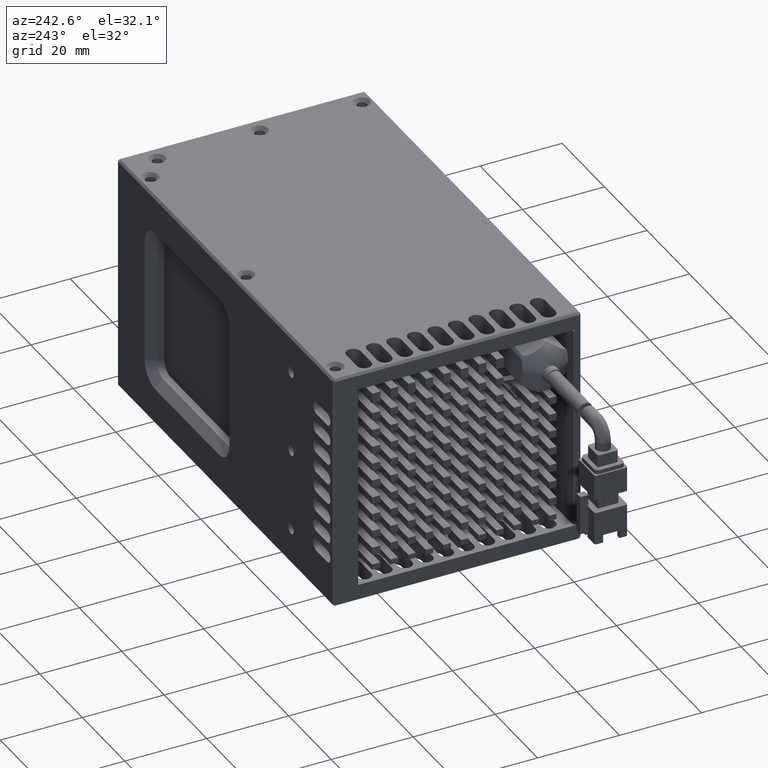
[diagram: clean part render]
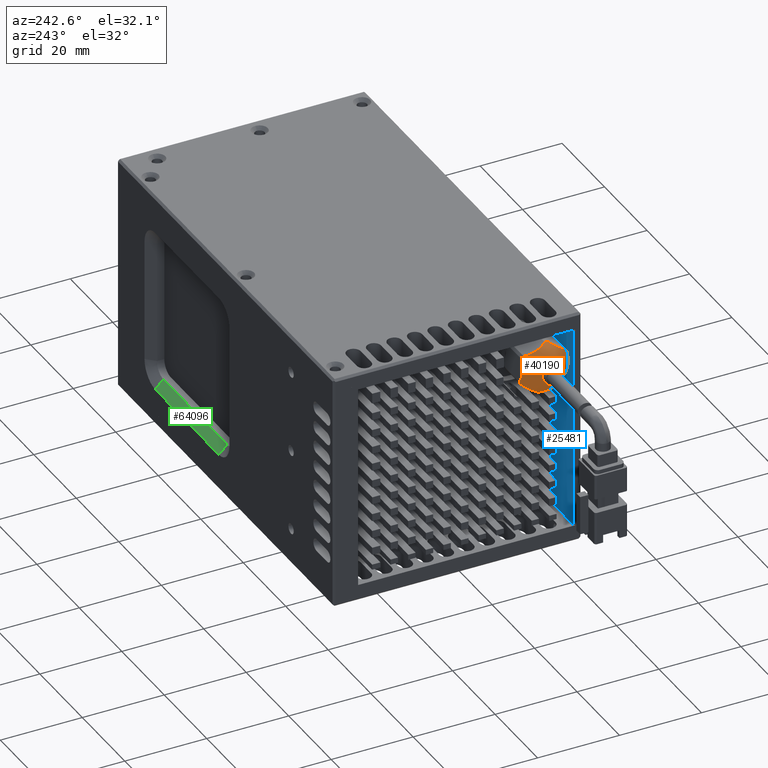
[diagram: same view with three faces highlighted in distinct colors, each labeled with its STEP entity id]
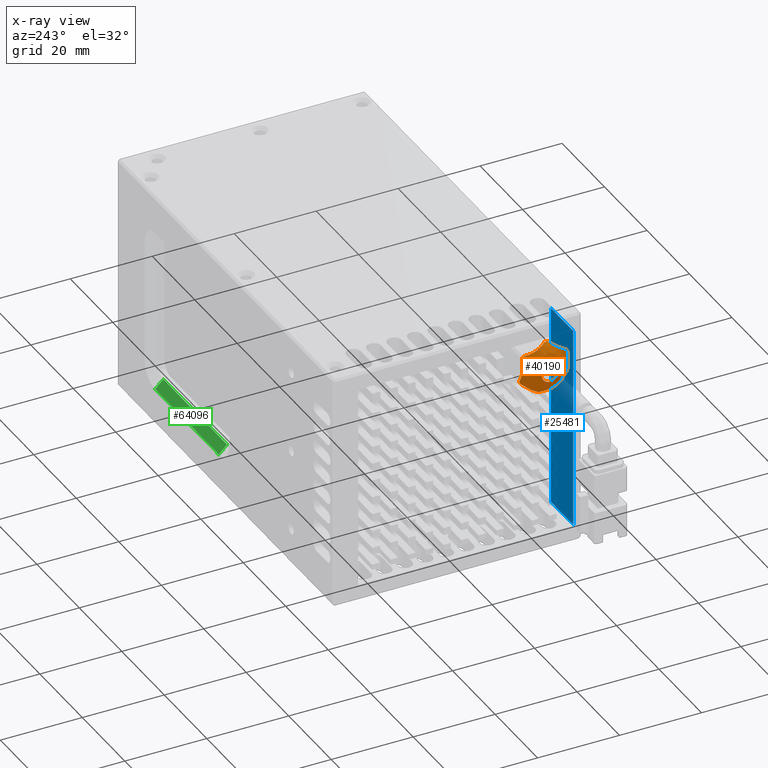
[diagram: x-ray of the same camera — body ghosted, the three highlighted faces saturated]
A machine part, auxiliary view with three faces highlighted in distinct colors.
The next image is the same camera in x-ray (body ghosted, the three faces saturated) — at least one of them is partly hidden behind the body in this view.
Their STEP definitions:

[orange] entity #40190 — the highlighted face is a freeform B-spline surface patch.
#63 = DIRECTION ( 'NONE',  ( -1.000000000000000000, -3.435095995686201000E-016, 5.943609381515295800E-025 ) ) ;
#664 = CARTESIAN_POINT ( 'NONE',  ( -69.76751117526072200, -3.757429982836344900, 46.10302907912925000 ) ) ;
#1146 = CARTESIAN_POINT ( 'NONE',  ( -67.11748828113964300, -2.040397117867909200, 52.89484992564335600 ) ) ;
#1305 = CARTESIAN_POINT ( 'NONE',  ( -69.01067074972824900, 6.359593161516713200, 51.12003725472583000 ) ) ;
#1408 = CIRCLE ( 'NONE', #64068, 6.249999999999519500 ) ;
#1698 = VERTEX_POINT ( 'NONE', #57127 ) ;
#1701 = CARTESIAN_POINT ( 'NONE',  ( -69.74788720313205200, 5.516405416110333500, 42.80281597644518900 ) ) ;
#1880 = CARTESIAN_POINT ( 'NONE',  ( -68.86375292816285300, 1.775993330902647400, 47.00000000000953500 ) ) ;
#2270 = EDGE_CURVE ( 'NONE', #15719, #27277, #1408, .T. ) ;
#2798 = EDGE_CURVE ( 'NONE', #32900, #52061, #59809, .T. ) ;
#2986 = DIRECTION ( 'NONE',  ( 0.0000000000000000000, 0.1155358669953259300, -0.9933033088828600000 ) ) ;
#3318 = CARTESIAN_POINT ( 'NONE',  ( -69.76791800731977800, -0.6688521879133749700, 41.95597120429006600 ) ) ;
#3627 = CARTESIAN_POINT ( 'NONE',  ( -69.14023917023460800, 7.611446565604945000, 45.30031130620378800 ) ) ;
#3949 = AXIS2_PLACEMENT_3D ( 'NONE', #66506, #34768, #2986 ) ;
#4153 = CARTESIAN_POINT ( 'NONE',  ( -69.61245713189387600, -2.548694199875747300, 50.76271614182066800 ) ) ;
#4412 = ORIENTED_EDGE ( 'NONE', *, *, #2270, .F. ) ;
#4491 = ORIENTED_EDGE ( 'NONE', *, *, #57229, .T. ) ;
#5080 = VERTEX_POINT ( 'NONE', #54070 ) ;
#5784 = CARTESIAN_POINT ( 'NONE',  ( -68.86375292816285300, -3.465854137917597600, 43.59624690766882100 ) ) ;
#5791 = ORIENTED_EDGE ( 'NONE', *, *, #49527, .T. ) ;
#5854 = VERTEX_POINT ( 'NONE', #20504 ) ;
#5887 = VERTEX_POINT ( 'NONE', #26339 ) ;
#6001 = CARTESIAN_POINT ( 'NONE',  ( -69.74827311948432400, -3.843521769959718600, 46.84319106727402700 ) ) ;
#6398 = CARTESIAN_POINT ( 'NONE',  ( -69.61245713189376300, 2.872257331551832500, 52.62664733599891800 ) ) ;
#6463 = CARTESIAN_POINT ( 'NONE',  ( -76.08316824912783700, 4.992152780540819500, 50.51262484915948600 ) ) ;
#7003 = CARTESIAN_POINT ( 'NONE',  ( -69.76791800731975000, 4.921827646007848500, 42.36068727452639800 ) ) ;
#7170 = DIRECTION ( 'NONE',  ( 0.0000000000000000000, 0.1155358669953259300, -0.9933033088828600000 ) ) ;
#7668 = CARTESIAN_POINT ( 'NONE',  ( -68.86375292816285300, 1.775993330902647400, 47.00000000000953500 ) ) ;
#8628 = CARTESIAN_POINT ( 'NONE',  ( -69.67125075074393700, -1.344631551777275300, 42.24792358626742600 ) ) ;
#8690 = CARTESIAN_POINT ( 'NONE',  ( -68.86375292816285300, 1.775993330902647400, 47.00000000000953500 ) ) ;
#8709 = CARTESIAN_POINT ( 'NONE',  ( -69.38120834824201200, 7.115041898616981400, 49.56808036430897600 ) ) ;
#8941 = CARTESIAN_POINT ( 'NONE',  ( -68.86375292816285300, 7.659142921570422800, 44.89024861801639300 ) ) ;
#9017 = VERTEX_POINT ( 'NONE', #29128 ) ;
#9438 = CARTESIAN_POINT ( 'NONE',  ( -69.74788720313225100, -1.964418754304794800, 51.19718402357275300 ) ) ;
#9504 = AXIS2_PLACEMENT_3D ( 'NONE', #43173, #11329, #48454 ) ;
#9777 = VERTEX_POINT ( 'NONE', #62614 ) ;
#10053 = EDGE_LOOP ( 'NONE', ( #38919, #22726 ) ) ;
#10082 = CIRCLE ( 'NONE', #3949, 6.249999999999519500 ) ;
#10329 = CARTESIAN_POINT ( 'NONE',  ( -68.86375292816285300, 1.775993330902647400, 47.00000000000953500 ) ) ;
#11097 = CARTESIAN_POINT ( 'NONE',  ( -69.15758857129377200, -3.512439634392970200, 43.99675913818516200 ) ) ;
#11317 = CARTESIAN_POINT ( 'NONE',  ( -69.61395248318233100, -3.927375146640508200, 47.56410863758488000 ) ) ;
#11329 = DIRECTION ( 'NONE',  ( 1.000000000000000000, 3.435095995686201000E-016, -5.943609381515295800E-025 ) ) ;
#11726 = CARTESIAN_POINT ( 'NONE',  ( -69.74788720313222300, 3.540655277063015300, 52.33788389820305300 ) ) ;
#11783 = CARTESIAN_POINT ( 'NONE',  ( -70.08185129819501900, -6.113500693981673200, 49.22087308385862800 ) ) ;
#11957 = EDGE_CURVE ( 'NONE', #52061, #5854, #56575, .T. ) ;
#12330 = CARTESIAN_POINT ( 'NONE',  ( -69.67125075074403600, 4.331099784588070100, 41.92142136905575700 ) ) ;
#12988 = DIRECTION ( 'NONE',  ( 0.0000000000000000000, 0.1155358669953666000, -0.9933033088828552300 ) ) ;
#13355 = CARTESIAN_POINT ( 'NONE',  ( -68.86375292816285300, -3.465854137917597600, 43.59624690766882100 ) ) ;
#13935 = CARTESIAN_POINT ( 'NONE',  ( -69.46139549951442400, -1.995845591150274600, 42.52926317746930400 ) ) ;
#14012 = DIRECTION ( 'NONE',  ( 0.0000000000000000000, 0.1155358669952932900, -0.9933033088828637800 ) ) ;
#14034 = CARTESIAN_POINT ( 'NONE',  ( -69.67060427605062500, 7.224915172861658500, 48.62346039733898100 ) ) ;
#14450 = EDGE_CURVE ( 'NONE', #32900, #9777, #15000, .T. ) ;
#14742 = CARTESIAN_POINT ( 'NONE',  ( -69.76791800731994900, -1.369840984201970800, 51.63931272549179100 ) ) ;
#15000 = CIRCLE ( 'NONE', #25393, 6.249999999999519500 ) ;
#15165 = VERTEX_POINT ( 'NONE', #60319 ) ;
#15646 = DIRECTION ( 'NONE',  ( 0.0000000000000000000, 0.1155358669953259300, -0.9933033088828600000 ) ) ;
#15719 = VERTEX_POINT ( 'NONE', #28702 ) ;
#16632 = CARTESIAN_POINT ( 'NONE',  ( -69.36540694991344900, -4.008477693713319700, 48.26137633861409200 ) ) ;
#17015 = CARTESIAN_POINT ( 'NONE',  ( -69.76791800732003400, 4.220838849718489000, 52.04402879572795400 ) ) ;
#17077 = CARTESIAN_POINT ( 'NONE',  ( -76.08316824912810700, 5.712523559291454100, 44.31933875745265500 ) ) ;
#17631 = CARTESIAN_POINT ( 'NONE',  ( -69.46139549951458000, 3.761845531830432200, 41.49812326325859900 ) ) ;
#18785 = EDGE_CURVE ( 'NONE', #5887, #9017, #21053, .T. ) ;
#19121 = EDGE_CURVE ( 'NONE', #38785, #9017, #32506, .T. ) ;
#19262 = CARTESIAN_POINT ( 'NONE',  ( -69.14023917023453700, -2.613706873808888000, 42.79619360306332300 ) ) ;
#19345 = CARTESIAN_POINT ( 'NONE',  ( -69.76751117526068000, 7.309416644641678400, 47.89697092088950100 ) ) ;
#20076 = CARTESIAN_POINT ( 'NONE',  ( -69.67125075074409300, -0.7791131227819094700, 52.07857863096266000 ) ) ;
#20504 = CARTESIAN_POINT ( 'NONE',  ( -68.86375292816285300, 1.449180419135050600, 53.24144961694118200 ) ) ;
#20510 = ORIENTED_EDGE ( 'NONE', *, *, #34015, .F. ) ;
#21053 = B_SPLINE_CURVE_WITH_KNOTS ( 'NONE', 3,
 ( #50811, #56142, #24352, #61498, #29742, #66810, #35113, #3318, #40447, #8628, #45775, #13935, #51043, #19262, #56378, #24583 ),
 .UNSPECIFIED., .F., .F.,
 ( 4, 2, 2, 2, 2, 2, 2, 4 ),
 ( 4.690887623826672200E-016, 0.001475511169496401600, 0.002213266754244368100, 0.002951022338992334400, 0.003688777923740300700, 0.004426533508488267000, 0.005164289093236232800, 0.005902044677984199600 ),
 .UNSPECIFIED. ) ;
#21319 = ORIENTED_EDGE ( 'NONE', *, *, #65054, .T. ) ;
#21327 = CARTESIAN_POINT ( 'NONE',  ( -68.86375292816285300, 1.775993330902647400, 47.00000000000953500 ) ) ;
#21922 = CARTESIAN_POINT ( 'NONE',  ( -69.01067074972826300, -4.083863511527429300, 48.90949526674420900 ) ) ;
#22333 = CARTESIAN_POINT ( 'NONE',  ( -69.67125075074416400, 4.896618213582739200, 51.75207641375039500 ) ) ;
#22389 = CARTESIAN_POINT ( 'NONE',  ( -70.08185129819513300, -5.393129915231303300, 43.02758699215177500 ) ) ;
#22716 = CARTESIAN_POINT ( 'NONE',  ( -69.15758857129368700, 7.021092693573398200, 43.92170313676363900 ) ) ;
#22726 = ORIENTED_EDGE ( 'NONE', *, *, #46179, .T. ) ;
#22949 = CARTESIAN_POINT ( 'NONE',  ( -69.14023917023473600, 3.221746360893675800, 41.09650490925837100 ) ) ;
#24259 = CARTESIAN_POINT ( 'NONE',  ( -72.09568362246530200, 1.775993330902716700, 47.00000000000893200 ) ) ;
#24352 = CARTESIAN_POINT ( 'NONE',  ( -69.38120834824229600, 1.330491881488283800, 41.09220812617983400 ) ) ;
#24583 = CARTESIAN_POINT ( 'NONE',  ( -68.86375292816285300, -2.992679756905907600, 42.95991869122291700 ) ) ;
#24687 = CARTESIAN_POINT ( 'NONE',  ( -69.74827311948443800, 7.395508431765049900, 47.15680893274469600 ) ) ;
#25371 = FACE_BOUND ( 'NONE', #10053, .T. ) ;
#25393 = AXIS2_PLACEMENT_3D ( 'NONE', #10329, #47476, #15646 ) ;
#25422 = CARTESIAN_POINT ( 'NONE',  ( -69.46139549951436700, -0.2098588700239784100, 52.50187673676001800 ) ) ;
#25993 = ORIENTED_EDGE ( 'NONE', *, *, #68757, .F. ) ;
#26288 = ORIENTED_EDGE ( 'NONE', *, *, #11957, .T. ) ;
#26339 = CARTESIAN_POINT ( 'NONE',  ( -68.86375292816285300, 2.102806242668322900, 40.75855038307755500 ) ) ;
#26708 = DIRECTION ( 'NONE',  ( 0.0000000000000000000, 0.1155358669953259300, -0.9933033088828600000 ) ) ;
#27094 = CARTESIAN_POINT ( 'NONE',  ( -69.61245713189386200, -3.644958200525246100, 45.13606880583137800 ) ) ;
#27277 = VERTEX_POINT ( 'NONE', #33885 ) ;
#27501 = CARTESIAN_POINT ( 'NONE',  ( -69.15758857129343100, 1.819326933526871400, 53.08153772507832700 ) ) ;
#27726 = CARTESIAN_POINT ( 'NONE',  ( -69.46139549951450900, 5.547832252956119700, 51.47073682254839600 ) ) ;
#27736 = CARTESIAN_POINT ( 'NONE',  ( -68.86375292816285300, 0.6615168280449691400, 53.14983269078837200 ) ) ;
#27778 = CARTESIAN_POINT ( 'NONE',  ( -69.57956255432741000, 3.970657990856444600, 40.91651937782536000 ) ) ;
#28102 = CARTESIAN_POINT ( 'NONE',  ( -69.38120834824218300, 6.669540449203119600, 43.66028849047898300 ) ) ;
#28328 = CARTESIAN_POINT ( 'NONE',  ( -68.86375292816285300, 2.890469833762177000, 40.85016730923076300 ) ) ;
#28702 = CARTESIAN_POINT ( 'NONE',  ( -68.86375292816285300, 2.498092499623379800, 40.79185431949214500 ) ) ;
#28883 = CIRCLE ( 'NONE', #57880, 6.249999999999519500 ) ;
#29128 = CARTESIAN_POINT ( 'NONE',  ( -68.86375292816285300, -2.992679756905907600, 42.95991869122291700 ) ) ;
#29631 = DIRECTION ( 'NONE',  ( 0.0000000000000000000, -0.1155358669953258200, 0.9933033088828601100 ) ) ;
#29742 = CARTESIAN_POINT ( 'NONE',  ( -69.67060427605066800, 0.4574903560481536900, 41.46936506297194600 ) ) ;
#29777 = CIRCLE ( 'NONE', #51877, 6.249999999999516800 ) ;
#30064 = CARTESIAN_POINT ( 'NONE',  ( -69.61395248318253000, 7.479361808445839100, 46.43589136243380700 ) ) ;
#30569 = CARTESIAN_POINT ( 'NONE',  ( -69.15758857129357300, -3.469106031768471400, 50.07829686325383300 ) ) ;
#30807 = CARTESIAN_POINT ( 'NONE',  ( -69.14023917023413900, 0.3302403009129766800, 52.90349509076042300 ) ) ;
#31838 = CARTESIAN_POINT ( 'NONE',  ( -68.86375292816285300, 1.775993330902647400, 47.00000000000953500 ) ) ;
#32096 = EDGE_CURVE ( 'NONE', #60329, #1698, #47935, .T. ) ;
#32106 = ORIENTED_EDGE ( 'NONE', *, *, #19121, .F. ) ;
#32470 = CARTESIAN_POINT ( 'NONE',  ( -69.74788720313216600, -3.729080700465533300, 45.85930012537919300 ) ) ;
#32506 = CIRCLE ( 'NONE', #58725, 6.249999999999515100 ) ;
#32669 = EDGE_LOOP ( 'NONE', ( #25993, #5791, #4412, #63105, #46317, #32106, #21319, #45432, #37455, #26288, #47957, #20510, #4491 ) ) ;
#32858 = CARTESIAN_POINT ( 'NONE',  ( -68.86375292816285300, 1.449180419135050600, 53.24144961694118200 ) ) ;
#32900 = VERTEX_POINT ( 'NONE', #56160 ) ;
#32922 = CARTESIAN_POINT ( 'NONE',  ( -69.57956255432689800, -0.4186713290508614100, 53.08348062219300800 ) ) ;
#33088 = CARTESIAN_POINT ( 'NONE',  ( -69.14023917023431000, 6.165693535615012900, 51.20380639695424200 ) ) ;
#33144 = CARTESIAN_POINT ( 'NONE',  ( -67.11748828113989900, -0.5854992543141562800, 40.38657089906728700 ) ) ;
#33459 = CARTESIAN_POINT ( 'NONE',  ( -69.67060427605058200, 5.906412198007584100, 43.09282546030131300 ) ) ;
#33885 = CARTESIAN_POINT ( 'NONE',  ( -68.86375292816285300, 2.890469833762177000, 40.85016730923076300 ) ) ;
#34015 = EDGE_CURVE ( 'NONE', #51616, #5080, #10082, .T. ) ;
#34768 = DIRECTION ( 'NONE',  ( 1.000000000000000000, 3.435095995686201000E-016, -5.943609381515295800E-025 ) ) ;
#35113 = CARTESIAN_POINT ( 'NONE',  ( -69.76751117526065100, -0.2139187220289190400, 41.75942937997803700 ) ) ;
#35413 = CARTESIAN_POINT ( 'NONE',  ( -69.36540694991369100, 7.560464355518643500, 45.73862366140457400 ) ) ;
#35450 = B_SPLINE_CURVE_WITH_KNOTS ( 'NONE', 3,
 ( #66904, #40309, #8709, #45855, #14034, #51138, #19345, #56469, #24687, #61804, #30064, #67125, #35413, #3627, #40759, #8941 ),
 .UNSPECIFIED., .F., .F.,
 ( 4, 2, 2, 2, 2, 2, 2, 4 ),
 ( 1.497122641742852700E-016, 0.001475511169496494800, 0.002213266754244667300, 0.002951022338992840100, 0.003688777923741012800, 0.004426533508489185500, 0.005164289093237358700, 0.005902044677985531000 ),
 .UNSPECIFIED. ) ;
#35935 = CARTESIAN_POINT ( 'NONE',  ( -68.86375292816285300, -3.792667049684699700, 49.83769652459977800 ) ) ;
#36143 = CARTESIAN_POINT ( 'NONE',  ( -68.86375292816285300, 0.6615168280449691400, 53.14983269078837200 ) ) ;
#37182 = DIRECTION ( 'NONE',  ( 0.0000000000000000000, 0.1155358669953259300, -0.9933033088828600000 ) ) ;
#37455 = ORIENTED_EDGE ( 'NONE', *, *, #2798, .T. ) ;
#37564 = EDGE_CURVE ( 'NONE', #5854, #5080, #39424, .T. ) ;
#37777 = CARTESIAN_POINT ( 'NONE',  ( -69.76791800731982100, -3.814686503018229800, 46.59528392977304600 ) ) ;
#37879 = FACE_OUTER_BOUND ( 'NONE', #32669, .T. ) ;
#38194 = CARTESIAN_POINT ( 'NONE',  ( -69.38120834824199800, 2.221494780315773600, 52.90779187383861200 ) ) ;
#38252 = CARTESIAN_POINT ( 'NONE',  ( -70.08185129819497700, 8.945116577036481300, 50.97241300786692600 ) ) ;
#38427 = CARTESIAN_POINT ( 'NONE',  ( -68.86375292816285300, 6.544666418712424200, 51.04008130879449800 ) ) ;
#38785 = VERTEX_POINT ( 'NONE', #13355 ) ;
#38804 = CARTESIAN_POINT ( 'NONE',  ( -69.76751117526056600, 5.319504591710440900, 42.65640030085803100 ) ) ;
#38919 = ORIENTED_EDGE ( 'NONE', *, *, #32096, .T. ) ;
#38996 = DIRECTION ( 'NONE',  ( 1.000000000000000000, 3.435095995686201000E-016, -5.943609381515295800E-025 ) ) ;
#39424 = B_SPLINE_CURVE_WITH_KNOTS ( 'NONE', 3,
 ( #32858, #27501, #38194, #6398, #43537, #11726, #48834, #17015, #54147, #22333, #59466, #27726, #64820, #33088, #1305, #38427 ),
 .UNSPECIFIED., .F., .F.,
 ( 4, 2, 2, 2, 2, 2, 2, 4 ),
 ( 2.596296363159514900E-017, 0.001475511169496785000, 0.002213266754245160400, 0.002951022338993536100, 0.003688777923741910100, 0.004426533508490284500, 0.005164289093238658800, 0.005902044677987033200 ),
 .UNSPECIFIED. ) ;
#39712 = VERTEX_POINT ( 'NONE', #54731 ) ;
#39845 = CARTESIAN_POINT ( 'NONE',  ( -72.09568362246530200, 1.544921596912064900, 48.98660661777465500 ) ) ;
#40190 = ADVANCED_FACE ( 'NONE', ( #25371, #37879 ), #61660, .T. ) ;
#40309 = CARTESIAN_POINT ( 'NONE',  ( -69.15758857129347300, 7.064426296198351300, 50.00324086183330500 ) ) ;
#40447 = CARTESIAN_POINT ( 'NONE',  ( -69.74827311948423900, -0.8979637002394858000, 42.05495269934421300 ) ) ;
#40759 = CARTESIAN_POINT ( 'NONE',  ( -69.01067074972847600, 7.635850173332784200, 45.09050473327419400 ) ) ;
#41246 = CARTESIAN_POINT ( 'NONE',  ( -69.67060427605079600, -2.354425536202253700, 50.90717453971647200 ) ) ;
#43155 = CARTESIAN_POINT ( 'NONE',  ( -69.67125075074402200, -3.899738005462314700, 47.32650221722131100 ) ) ;
#43173 = CARTESIAN_POINT ( 'NONE',  ( -72.09568362246530200, 1.775993330902716700, 47.00000000000893200 ) ) ;
#43373 = CARTESIAN_POINT ( 'NONE',  ( -67.11748828113961500, 4.137485916119175900, 53.61342910095101600 ) ) ;
#43537 = CARTESIAN_POINT ( 'NONE',  ( -69.67060427605069600, 3.094496305756325900, 52.53063493704631500 ) ) ;
#43589 = CARTESIAN_POINT ( 'NONE',  ( -76.08316824912785100, -2.160536897485977100, 49.68066124256606700 ) ) ;
#44135 = CARTESIAN_POINT ( 'NONE',  ( -69.74827311948429600, 4.721551400623289900, 42.21176163207969300 ) ) ;
#44812 = DIRECTION ( 'NONE',  ( 1.000000000000000000, 3.435095995686201000E-016, -5.943609381515295800E-025 ) ) ;
#45175 = EDGE_CURVE ( 'NONE', #5887, #15719, #29777, .T. ) ;
#45432 = ORIENTED_EDGE ( 'NONE', *, *, #14450, .F. ) ;
#45775 = CARTESIAN_POINT ( 'NONE',  ( -69.61395248318233100, -1.564223318503453500, 42.34279233010092000 ) ) ;
#45839 = DIRECTION ( 'NONE',  ( 1.000000000000000000, 3.435095995686201000E-016, -5.943609381515295800E-025 ) ) ;
#45855 = CARTESIAN_POINT ( 'NONE',  ( -69.61245713189376300, 7.196944862330591200, 48.86393119418734400 ) ) ;
#46179 = EDGE_CURVE ( 'NONE', #1698, #60329, #50242, .T. ) ;
#46317 = ORIENTED_EDGE ( 'NONE', *, *, #18785, .T. ) ;
#46577 = CARTESIAN_POINT ( 'NONE',  ( -69.76751117526085000, -1.767517929904791800, 51.34359969915998100 ) ) ;
#47476 = DIRECTION ( 'NONE',  ( 1.000000000000000000, 3.435095995686201000E-016, -5.943609381515295800E-025 ) ) ;
#47935 = CIRCLE ( 'NONE', #9504, 2.000000000000002200 ) ;
#47957 = ORIENTED_EDGE ( 'NONE', *, *, #37564, .T. ) ;
#48444 = CARTESIAN_POINT ( 'NONE',  ( -69.46139549951433900, -3.981697792077699500, 48.03113991422054600 ) ) ;
#48454 = DIRECTION ( 'NONE',  ( 0.0000000000000000000, -0.1155358669953258200, 0.9933033088828601100 ) ) ;
#48834 = CARTESIAN_POINT ( 'NONE',  ( -69.76751117526085000, 3.765905383833764800, 52.24057062004008900 ) ) ;
#48896 = CARTESIAN_POINT ( 'NONE',  ( -70.08185129819510500, 9.665487355787213600, 44.77912691616013100 ) ) ;
#49425 = CARTESIAN_POINT ( 'NONE',  ( -69.61395248318244500, 4.139145159040094900, 41.77868369252573200 ) ) ;
#49527 = EDGE_CURVE ( 'NONE', #39712, #27277, #66494, .T. ) ;
#50241 = AXIS2_PLACEMENT_3D ( 'NONE', #31838, #63, #37182 ) ;
#50242 = CIRCLE ( 'NONE', #66197, 2.000000000000002200 ) ;
#50811 = CARTESIAN_POINT ( 'NONE',  ( -68.86375292816285300, 2.102806242668322900, 40.75855038307755500 ) ) ;
#51043 = CARTESIAN_POINT ( 'NONE',  ( -69.36540694991359100, -2.208626134369361600, 42.62118931453878200 ) ) ;
#51138 = CARTESIAN_POINT ( 'NONE',  ( -69.74788720313210900, 7.281067362270874800, 48.14069987463955900 ) ) ;
#51616 = VERTEX_POINT ( 'NONE', #66475 ) ;
#51855 = CARTESIAN_POINT ( 'NONE',  ( -69.74827311948448000, -1.169564738817325400, 51.78823836793858200 ) ) ;
#51877 = AXIS2_PLACEMENT_3D ( 'NONE', #8690, #45839, #14012 ) ;
#52061 = VERTEX_POINT ( 'NONE', #27736 ) ;
#53733 = CARTESIAN_POINT ( 'NONE',  ( -69.14023917023423800, -4.059459903799619500, 48.69968869381483500 ) ) ;
#54070 = CARTESIAN_POINT ( 'NONE',  ( -68.86375292816285300, 6.544666418712424200, 51.04008130879449800 ) ) ;
#54147 = CARTESIAN_POINT ( 'NONE',  ( -69.74827311948452300, 4.449950362044707400, 51.94504730067372800 ) ) ;
#54201 = CARTESIAN_POINT ( 'NONE',  ( -76.08316824912812100, -1.440166118735522800, 43.48737515085923600 ) ) ;
#54508 = CARTESIAN_POINT ( 'NONE',  ( -68.86375292816285300, 7.344653711489161000, 44.16230347541733900 ) ) ;
#54731 = CARTESIAN_POINT ( 'NONE',  ( -68.86375292816285300, 7.344653711489161000, 44.16230347541733900 ) ) ;
#54743 = CARTESIAN_POINT ( 'NONE',  ( -69.36540694991373400, 3.575844890246930000, 41.35981297593453100 ) ) ;
#56142 = CARTESIAN_POINT ( 'NONE',  ( -69.15758857129378600, 1.732659728277374100, 40.91846227494003300 ) ) ;
#56160 = CARTESIAN_POINT ( 'NONE',  ( -68.86375292816285300, -3.792667049684699700, 49.83769652459977800 ) ) ;
#56378 = CARTESIAN_POINT ( 'NONE',  ( -69.01067074972844800, -2.807606499710740600, 42.87996274529179200 ) ) ;
#56469 = CARTESIAN_POINT ( 'NONE',  ( -69.76791800731984900, 7.366673164823561500, 47.40471607024569100 ) ) ;
#56575 = CIRCLE ( 'NONE', #50241, 6.249999999999519500 ) ;
#57127 = CARTESIAN_POINT ( 'NONE',  ( -72.09568362246530200, 2.007065064893367900, 45.01339338224320800 ) ) ;
#57198 = CARTESIAN_POINT ( 'NONE',  ( -69.61395248318247300, -0.5871584972338312900, 52.22131630749275600 ) ) ;
#57229 = EDGE_CURVE ( 'NONE', #51616, #15165, #35450, .T. ) ;
#57880 = AXIS2_PLACEMENT_3D ( 'NONE', #1880, #38996, #7170 ) ;
#58462 = DIRECTION ( 'NONE',  ( 1.000000000000000000, 3.435095995686201000E-016, -5.943609381515295800E-025 ) ) ;
#58725 = AXIS2_PLACEMENT_3D ( 'NONE', #7668, #44812, #12988 ) ;
#58855 = CARTESIAN_POINT ( 'NONE',  ( -69.38120834824232500, -3.563055236811629700, 44.43191963570969700 ) ) ;
#59087 = CARTESIAN_POINT ( 'NONE',  ( -68.86375292816285300, -4.107156259765115900, 49.10975138200239300 ) ) ;
#59466 = CARTESIAN_POINT ( 'NONE',  ( -69.61395248318250100, 5.116209980309052200, 51.65720766991690000 ) ) ;
#59523 = CARTESIAN_POINT ( 'NONE',  ( -67.11748828113987000, 5.592383779673666000, 41.10515007437504000 ) ) ;
#59809 = B_SPLINE_CURVE_WITH_KNOTS ( 'NONE', 3,
 ( #35935, #30569, #67617, #4153, #41246, #9438, #46577, #14742, #51855, #20076, #57198, #25422, #62533, #30807, #67841, #36143 ),
 .UNSPECIFIED., .F., .F.,
 ( 4, 2, 2, 2, 2, 2, 2, 4 ),
 ( 1.319765775190741900E-016, 0.001475511169496877800, 0.002213266754245249300, 0.002951022338993621600, 0.003688777923741994200, 0.004426533508490366900, 0.005164289093238740400, 0.005902044677987113000 ),
 .UNSPECIFIED. ) ;
#60072 = CARTESIAN_POINT ( 'NONE',  ( -69.01067074972857500, 3.052250342719560600, 40.97046747855725400 ) ) ;
#60319 = CARTESIAN_POINT ( 'NONE',  ( -68.86375292816285300, 7.659142921570422800, 44.89024861801639300 ) ) ;
#60329 = VERTEX_POINT ( 'NONE', #39845 ) ;
#61405 = DIRECTION ( 'NONE',  ( 1.000000000000000000, 3.435095995686201000E-016, -5.943609381515295800E-025 ) ) ;
#61498 = CARTESIAN_POINT ( 'NONE',  ( -69.61245713189381900, 0.6797293302525440100, 41.37335266401940700 ) ) ;
#61660 =( BOUNDED_SURFACE ( )  B_SPLINE_SURFACE ( 3, 3, ( 
 ( #43373, #64646, #32922, #1146 ),
 ( #38252, #6463, #43589, #11783 ),
 ( #48896, #17077, #54201, #22389 ),
 ( #59523, #27778, #64877, #33144 ) ),
 .UNSPECIFIED., .F., .F., .F. ) 
 B_SPLINE_SURFACE_WITH_KNOTS ( ( 4, 4 ),
 ( 4, 4 ),
 ( 0.0000000000000000000, 1.000000000000000000 ),
 ( 0.0000000000000000000, 1.000000000000000000 ),
 .UNSPECIFIED. ) 
 GEOMETRIC_REPRESENTATION_ITEM ( )  RATIONAL_B_SPLINE_SURFACE ( (
 ( 1.000000000000000000, 0.7017694484579010100, 0.7017694484579010100, 1.000000000000000000),
 ( 0.6732171387617810200, 0.4724432201612612800, 0.4724432201612612800, 0.6732171387617810200),
 ( 0.6732171387617810200, 0.4724432201612612800, 0.4724432201612612800, 0.6732171387617810200),
 ( 1.000000000000000000, 0.7017694484579010100, 0.7017694484579010100, 1.000000000000000000) ) ) 
 REPRESENTATION_ITEM ( '' )  SURFACE ( )  );
#61804 = CARTESIAN_POINT ( 'NONE',  ( -69.67125075074412200, 7.451724667267646000, 46.67349778279739100 ) ) ;
#62533 = CARTESIAN_POINT ( 'NONE',  ( -69.36540694991340700, -0.02385822844040110000, 52.64018702408416300 ) ) ;
#62534 = B_SPLINE_CURVE_WITH_KNOTS ( 'NONE', 3,
 ( #5784, #11097, #58855, #27094, #64183, #32470, #664, #37777, #6001, #43155, #11317, #48444, #16632, #53733, #21922, #59087 ),
 .UNSPECIFIED., .F., .F.,
 ( 4, 2, 2, 2, 2, 2, 2, 4 ),
 ( 3.681255805517746600E-016, 0.001475511169496699300, 0.002213266754244868100, 0.002951022338993037000, 0.003688777923741205800, 0.004426533508489373700, 0.005164289093237543400, 0.005902044677985712200 ),
 .UNSPECIFIED. ) ;
#62614 = CARTESIAN_POINT ( 'NONE',  ( -68.86375292816285300, -4.107156259765115900, 49.10975138200239300 ) ) ;
#63105 = ORIENTED_EDGE ( 'NONE', *, *, #45175, .F. ) ;
#64068 = AXIS2_PLACEMENT_3D ( 'NONE', #21327, #58462, #26708 ) ;
#64183 = CARTESIAN_POINT ( 'NONE',  ( -69.67060427605076700, -3.672928511056312100, 45.37653960267974900 ) ) ;
#64646 = CARTESIAN_POINT ( 'NONE',  ( -69.57956255432687000, 2.515760127302150400, 53.42479840440135800 ) ) ;
#64820 = CARTESIAN_POINT ( 'NONE',  ( -69.36540694991353500, 5.760612796175310600, 51.37881068547886800 ) ) ;
#64877 = CARTESIAN_POINT ( 'NONE',  ( -69.57956255432743800, 1.036226534503087900, 40.57520159561696000 ) ) ;
#65054 = EDGE_CURVE ( 'NONE', #38785, #9777, #62534, .T. ) ;
#65180 = CARTESIAN_POINT ( 'NONE',  ( -69.61245713189369200, 6.100680861680974200, 43.23728385819703100 ) ) ;
#66197 = AXIS2_PLACEMENT_3D ( 'NONE', #24259, #61405, #29631 ) ;
#66475 = CARTESIAN_POINT ( 'NONE',  ( -68.86375292816285300, 7.017840799722939900, 50.40375309235000900 ) ) ;
#66494 = B_SPLINE_CURVE_WITH_KNOTS ( 'NONE', 3,
 ( #54508, #22716, #28102, #65180, #33459, #1701, #38804, #7003, #44135, #12330, #49425, #17631, #54743, #22949, #60072, #28328 ),
 .UNSPECIFIED., .F., .F.,
 ( 4, 2, 2, 2, 2, 2, 2, 4 ),
 ( 3.506984956607857700E-016, 0.001475511169496294900, 0.002213266754244266200, 0.002951022338992237300, 0.003688777923740208700, 0.004426533508488178500, 0.005164289093236150400, 0.005902044677984120600 ),
 .UNSPECIFIED. ) ;
#66506 = CARTESIAN_POINT ( 'NONE',  ( -68.86375292816285300, 1.775993330902647400, 47.00000000000953500 ) ) ;
#66810 = CARTESIAN_POINT ( 'NONE',  ( -69.74788720313206600, 0.01133138474170054300, 41.66211610181510800 ) ) ;
#66904 = CARTESIAN_POINT ( 'NONE',  ( -68.86375292816285300, 7.017840799722939900, 50.40375309235000900 ) ) ;
#67125 = CARTESIAN_POINT ( 'NONE',  ( -69.46139549951456600, 7.533684453883029900, 45.96886008579814800 ) ) ;
#67617 = CARTESIAN_POINT ( 'NONE',  ( -69.38120834824214000, -3.117553787398188000, 50.33971150953847500 ) ) ;
#67841 = CARTESIAN_POINT ( 'NONE',  ( -69.01067074972813500, 0.4997363190867983900, 53.02953252146132700 ) ) ;
#68757 = EDGE_CURVE ( 'NONE', #39712, #15165, #28883, .T. ) ;

[blue] entity #25481 — the highlighted planar face has unit normal (0, -1, 0).
#1252 = VECTOR ( 'NONE', #61889, 1000.000000000000000 ) ;
#5523 = EDGE_CURVE ( 'NONE', #23891, #55633, #27945, .T. ) ;
#10186 = ORIENTED_EDGE ( 'NONE', *, *, #5523, .F. ) ;
#11824 = DIRECTION ( 'NONE',  ( 1.000000000000000000, 1.196391117533724800E-016, -7.632783294297951200E-017 ) ) ;
#14911 = ORIENTED_EDGE ( 'NONE', *, *, #22589, .F. ) ;
#15032 = VECTOR ( 'NONE', #59869, 1000.000000000000000 ) ;
#15262 = CARTESIAN_POINT ( 'NONE',  ( -68.57424922391152200, -5.723006669097360400, 4.200000000009557000 ) ) ;
#15277 = DIRECTION ( 'NONE',  ( 1.196391117533724800E-016, -1.000000000000000000, 2.687133370730801500E-017 ) ) ;
#16719 = LINE ( 'NONE', #54513, #15032 ) ;
#22589 = EDGE_CURVE ( 'NONE', #59992, #35488, #27477, .T. ) ;
#23891 = VERTEX_POINT ( 'NONE', #15262 ) ;
#25481 = ADVANCED_FACE ( 'NONE', ( #44166 ), #57504, .F. ) ;
#27477 = LINE ( 'NONE', #45121, #53996 ) ;
#27945 = LINE ( 'NONE', #38288, #54468 ) ;
#28989 = CARTESIAN_POINT ( 'NONE',  ( -58.07424922391152200, -5.723006669097359600, 4.200000000009557000 ) ) ;
#29306 = DIRECTION ( 'NONE',  ( -1.000000000000000000, -1.196391117533724800E-016, 7.632783294297951200E-017 ) ) ;
#30565 = CARTESIAN_POINT ( 'NONE',  ( -58.07424922391152200, -5.723006669097357800, 53.80000000000954000 ) ) ;
#34687 = ORIENTED_EDGE ( 'NONE', *, *, #52537, .T. ) ;
#35488 = VERTEX_POINT ( 'NONE', #53060 ) ;
#37780 = LINE ( 'NONE', #40624, #1252 ) ;
#38288 = CARTESIAN_POINT ( 'NONE',  ( -68.57424922391152200, -5.723006669097360400, 4.200000000009564100 ) ) ;
#40317 = AXIS2_PLACEMENT_3D ( 'NONE', #47104, #15277, #52396 ) ;
#40624 = CARTESIAN_POINT ( 'NONE',  ( -58.07424922391152200, -5.723006669097357800, 58.00000000000954300 ) ) ;
#44166 = FACE_OUTER_BOUND ( 'NONE', #61308, .T. ) ;
#45121 = CARTESIAN_POINT ( 'NONE',  ( -68.57424922391150800, -5.723006669097359600, 53.80000000000954700 ) ) ;
#47104 = CARTESIAN_POINT ( 'NONE',  ( -68.57424922391150800, -5.723006669097359600, 58.00000000000955000 ) ) ;
#49741 = EDGE_CURVE ( 'NONE', #55633, #59992, #37780, .T. ) ;
#52396 = DIRECTION ( 'NONE',  ( 7.632783294297951200E-017, 2.687133370730802500E-017, 1.000000000000000000 ) ) ;
#52537 = EDGE_CURVE ( 'NONE', #23891, #35488, #16719, .T. ) ;
#53060 = CARTESIAN_POINT ( 'NONE',  ( -68.57424922391150800, -5.723006669097359600, 53.80000000000954700 ) ) ;
#53996 = VECTOR ( 'NONE', #29306, 1000.000000000000000 ) ;
#54468 = VECTOR ( 'NONE', #11824, 1000.000000000000000 ) ;
#54513 = CARTESIAN_POINT ( 'NONE',  ( -68.57424922391150800, -5.723006669097359600, 58.00000000000955000 ) ) ;
#55633 = VERTEX_POINT ( 'NONE', #28989 ) ;
#57504 = PLANE ( 'NONE',  #40317 ) ;
#59869 = DIRECTION ( 'NONE',  ( 7.632783294297951200E-017, 2.687133370730802500E-017, 1.000000000000000000 ) ) ;
#59992 = VERTEX_POINT ( 'NONE', #30565 ) ;
#60369 = ORIENTED_EDGE ( 'NONE', *, *, #49741, .F. ) ;
#61308 = EDGE_LOOP ( 'NONE', ( #60369, #10186, #34687, #14911 ) ) ;
#61889 = DIRECTION ( 'NONE',  ( 7.632783294297951200E-017, 2.687133370730802500E-017, 1.000000000000000000 ) ) ;

[green] entity #64096 — the highlighted planar face has unit normal (0, -0.7071, -0.7071).
#398 = VECTOR ( 'NONE', #61237, 1000.000000000000100 ) ;
#1111 = VERTEX_POINT ( 'NONE', #67633 ) ;
#1370 = ORIENTED_EDGE ( 'NONE', *, *, #44480, .F. ) ;
#5130 = CARTESIAN_POINT ( 'NONE',  ( -14.57424922391150400, 50.77699333090738800, 11.00000000001354100 ) ) ;
#6783 = EDGE_LOOP ( 'NONE', ( #46515, #17417, #1370, #60978 ) ) ;
#6835 = DIRECTION ( 'NONE',  ( 6.493472317782524200E-016, -0.7071067811865495700, -0.7071067811865455700 ) ) ;
#7646 = CARTESIAN_POINT ( 'NONE',  ( -14.57424922391150400, 50.77699333090260600, 11.00000000000957100 ) ) ;
#12821 = LINE ( 'NONE', #55905, #398 ) ;
#13843 = CARTESIAN_POINT ( 'NONE',  ( -14.57424922391150400, 50.77699333090262000, 11.00000000000955700 ) ) ;
#13885 = FACE_OUTER_BOUND ( 'NONE', #6783, .T. ) ;
#17417 = ORIENTED_EDGE ( 'NONE', *, *, #63710, .F. ) ;
#19176 = DIRECTION ( 'NONE',  ( 1.380506584136770500E-030, 0.7071067811865455700, -0.7071067811865495700 ) ) ;
#22492 = DIRECTION ( 'NONE',  ( 1.000000000000000000, 3.435095992033281500E-016, 3.435095992033281500E-016 ) ) ;
#28235 = VECTOR ( 'NONE', #55399, 1000.000000000000000 ) ;
#29093 = EDGE_CURVE ( 'NONE', #31910, #1111, #12821, .T. ) ;
#31180 = VECTOR ( 'NONE', #22492, 1000.000000000000000 ) ;
#31910 = VERTEX_POINT ( 'NONE', #57006 ) ;
#34340 = AXIS2_PLACEMENT_3D ( 'NONE', #38619, #6835, #43967 ) ;
#35481 = CARTESIAN_POINT ( 'NONE',  ( -14.57424922391150400, 52.77699333091693700, 8.999999999995219800 ) ) ;
#38393 = PLANE ( 'NONE',  #34340 ) ;
#38571 = CARTESIAN_POINT ( 'NONE',  ( 33.42575077608849200, 52.77699333090263400, 9.000000000009556800 ) ) ;
#38619 = CARTESIAN_POINT ( 'NONE',  ( -14.57424922391150400, 50.77699333090262000, 11.00000000000955700 ) ) ;
#43967 = DIRECTION ( 'NONE',  ( 1.380506584136770500E-030, 0.7071067811865455700, -0.7071067811865495700 ) ) ;
#43994 = VECTOR ( 'NONE', #19176, 1000.000000000000100 ) ;
#44480 = EDGE_CURVE ( 'NONE', #31910, #61143, #58094, .T. ) ;
#46515 = ORIENTED_EDGE ( 'NONE', *, *, #49506, .F. ) ;
#49506 = EDGE_CURVE ( 'NONE', #55709, #1111, #59359, .T. ) ;
#55399 = DIRECTION ( 'NONE',  ( -1.000000000000000000, -4.591578309351152700E-016, -4.591578309351146800E-016 ) ) ;
#55709 = VERTEX_POINT ( 'NONE', #35481 ) ;
#55905 = CARTESIAN_POINT ( 'NONE',  ( 15.42575077611904900, 499046.7769933309200, -498985.0000000033200 ) ) ;
#57006 = CARTESIAN_POINT ( 'NONE',  ( 15.42575077608849400, 50.77699333089796600, 11.00000000001048100 ) ) ;
#58094 = LINE ( 'NONE', #7646, #28235 ) ;
#59359 = LINE ( 'NONE', #38571, #31180 ) ;
#59708 = LINE ( 'NONE', #13843, #43994 ) ;
#60978 = ORIENTED_EDGE ( 'NONE', *, *, #29093, .T. ) ;
#61143 = VERTEX_POINT ( 'NONE', #5130 ) ;
#61237 = DIRECTION ( 'NONE',  ( 4.329780281177639600E-017, 0.7071067811865452400, -0.7071067811865499000 ) ) ;
#63710 = EDGE_CURVE ( 'NONE', #61143, #55709, #59708, .T. ) ;
#64096 = ADVANCED_FACE ( 'NONE', ( #13885 ), #38393, .F. ) ;
#67633 = CARTESIAN_POINT ( 'NONE',  ( 15.42575077608849400, 52.77699333088148100, 9.000000000013768500 ) ) ;